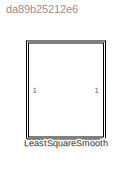
MODEL slx_da89b25212e6
KIND library
CONFIG AbsTol = auto
CONFIG EnableMultiTasking = off
CONFIG FixedStep = auto
CONFIG MaxStep = auto
CONFIG MinStep = auto
CONFIG RelTol = 1e-3
CONFIG SampleTimeConstraint = Unconstrained
CONFIG SolverName = VariableStepAuto
CONFIG StartTime = 0.0
CONFIG StopTime = 10.0
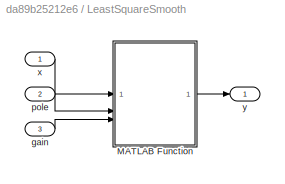
BLOCK [SubSystem] LeastSquareSmooth
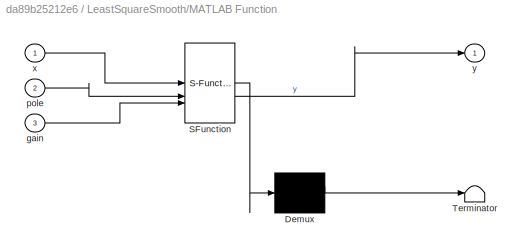
BLOCK [SubSystem] LeastSquareSmooth/MATLAB Function
  ErrorFcn = Stateflow.Translate.translate
  PermitHierarchicalResolution = ExplicitOnly
  SFBlockType = MATLAB Function
  TreatAsAtomicUnit = on
BLOCK [Demux] LeastSquareSmooth/MATLAB Function/ Demux 
  Outputs = 1
BLOCK [S-Function] LeastSquareSmooth/MATLAB Function/ SFunction 
  EnableBusSupport = off
  FunctionName = sf_sfun
  PortCounts = [3 2]
  SFcnIsStateOwnerBlock = off
  SFunctionDeploymentMode = off
  Tag = Stateflow S-Function 2
BLOCK [Terminator] LeastSquareSmooth/MATLAB Function/ Terminator 
BLOCK [Inport] LeastSquareSmooth/MATLAB Function/gain
  Port = 3
BLOCK [Inport] LeastSquareSmooth/MATLAB Function/pole
  Port = 2
BLOCK [Inport] LeastSquareSmooth/MATLAB Function/x
BLOCK [Outport] LeastSquareSmooth/MATLAB Function/y
  VectorParamsAs1DForOutWhenUnconnected = off
BLOCK [Inport] LeastSquareSmooth/gain 
  Port = 3
BLOCK [Inport] LeastSquareSmooth/pole 
  Port = 2
BLOCK [Inport] LeastSquareSmooth/x
BLOCK [Outport] LeastSquareSmooth/y
  VectorParamsAs1DForOutWhenUnconnected = off
LINE LeastSquareSmooth/MATLAB Function:1 -> LeastSquareSmooth/y:1
LINE LeastSquareSmooth/gain :1 -> LeastSquareSmooth/MATLAB Function:3
LINE LeastSquareSmooth/pole :1 -> LeastSquareSmooth/MATLAB Function:2
LINE LeastSquareSmooth/x:1 -> LeastSquareSmooth/MATLAB Function:1
CHART LeastSquareSmooth/MATLAB Function states=1 transitions=1
  STATE_LABEL 'eML_blk_kernel()'
  STATE_LABEL 'SCRIPT:\nfunction y = fcn(x, pole, gain)\npersistent xLast;\nif isempty(xLast)\n    xLast = single(zeros(size(x)));\nend\n\npersistent yLast;\nif isempty(yLast)\n    yLast = single(zeros(size(x)));\nend\n\ny = (gain * (x + xLast)) + (pole * yLast);\n\n% Update states\nxLast = x;\nyLast = y;\n'
CHART  states=0 transitions=0
